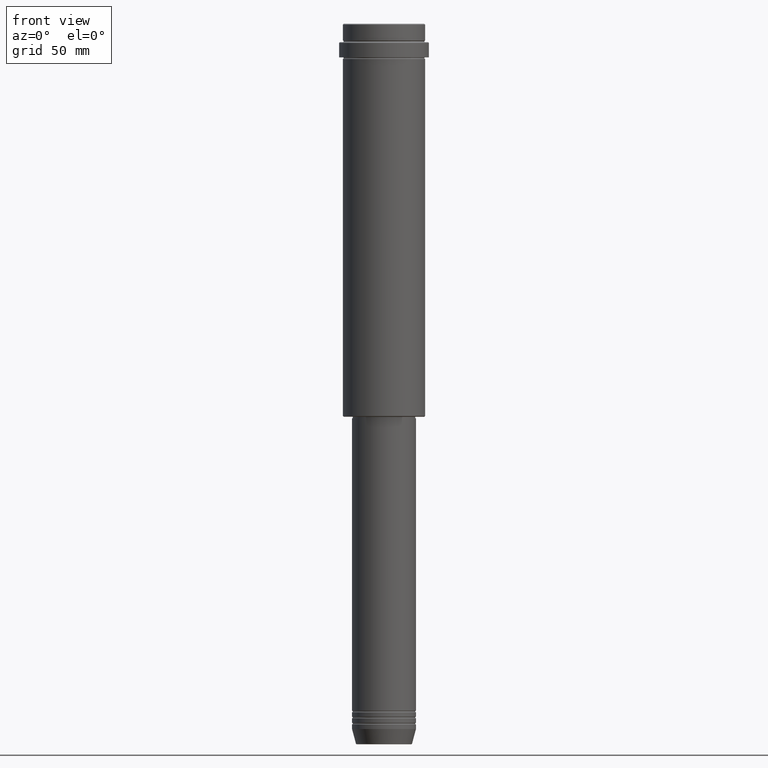
[diagram: clean part render]
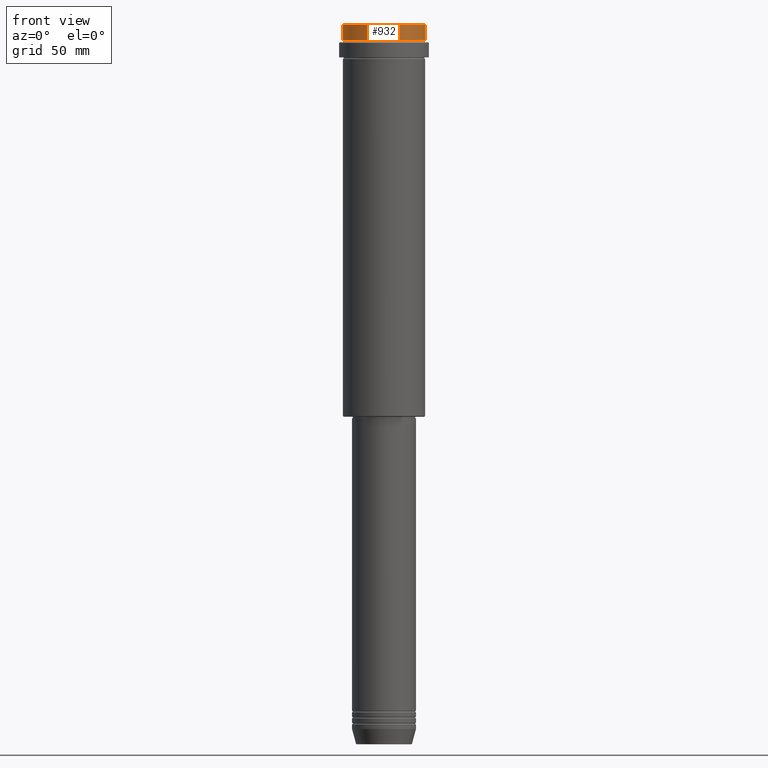
[diagram: same view with one face highlighted and labeled with its STEP entity id]
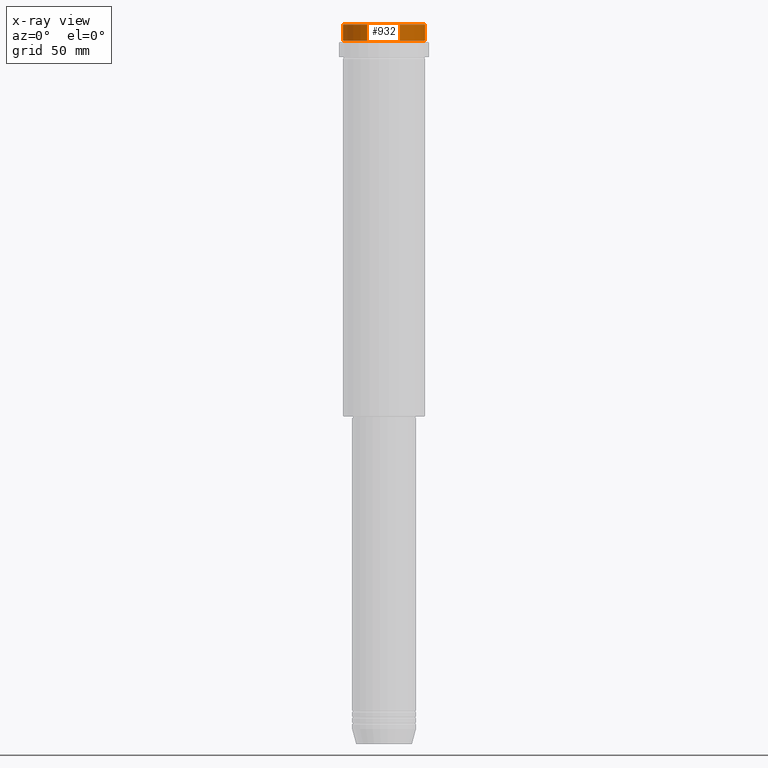
[diagram: x-ray of the same camera — body ghosted, the highlighted face saturated]
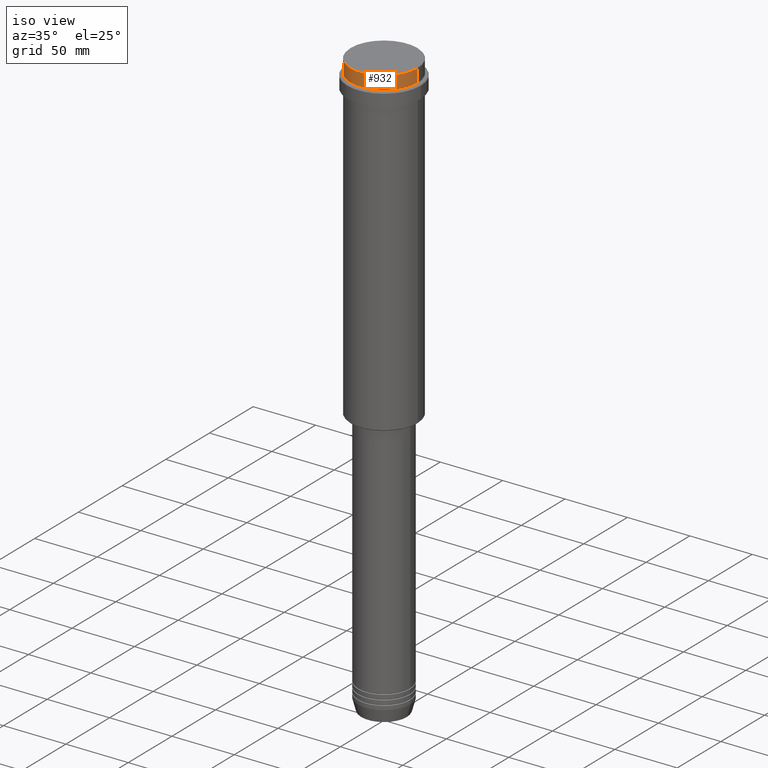
[diagram: same view with one face highlighted and labeled with its STEP entity id]
A machine part, front view. The second image highlights one B-rep face of the part: STEP entity #932.
The next image is the same camera in x-ray: the body ghosted, the highlighted face saturated — about 0% of this face is hidden behind the body in this view.
A second angle (iso view) of the same face is appended — the face is thin or edge-on in the first view.
In plain terms, the highlighted cylindrical surface (partial cylindrical patch) has radius 27 mm, axis along (-0, -0, 1).
Its self-contained STEP definition (entity closure, byte-faithful):
#41 = CARTESIAN_POINT ( 'NONE',  ( -27.00000000000000355, 3.306546357697854128E-15, 0.000000000000000000 ) ) ;
#65 = CYLINDRICAL_SURFACE ( 'NONE', #476, 27.00000000000000355 ) ;
#109 = ORIENTED_EDGE ( 'NONE', *, *, #1098, .T. ) ;
#147 = DIRECTION ( 'NONE',  ( -0.000000000000000000, -0.000000000000000000, 1.000000000000000000 ) ) ;
#159 = VERTEX_POINT ( 'NONE', #425 ) ;
#161 = VERTEX_POINT ( 'NONE', #328 ) ;
#206 = DIRECTION ( 'NONE',  ( 1.000000000000000000, 0.000000000000000000, 0.000000000000000000 ) ) ;
#209 = ORIENTED_EDGE ( 'NONE', *, *, #766, .F. ) ;
#252 = CARTESIAN_POINT ( 'NONE',  ( -27.00000000000000355, 3.306546357697854128E-15, -0.4999999999999241163 ) ) ;
#276 = DIRECTION ( 'NONE',  ( 1.000000000000000000, 0.000000000000000000, 0.000000000000000000 ) ) ;
#293 = VECTOR ( 'NONE', #147, 1000.000000000000000 ) ;
#300 = CARTESIAN_POINT ( 'NONE',  ( 27.00000000000000355, 0.000000000000000000, 0.000000000000000000 ) ) ;
#317 = DIRECTION ( 'NONE',  ( 0.000000000000000000, 0.000000000000000000, -1.000000000000000000 ) ) ;
#328 = CARTESIAN_POINT ( 'NONE',  ( 27.00000000000000355, 0.000000000000000000, -0.4999999999999241163 ) ) ;
#397 = VERTEX_POINT ( 'NONE', #252 ) ;
#418 = CARTESIAN_POINT ( 'NONE',  ( 0.000000000000000000, 0.000000000000000000, -0.4999999999999241163 ) ) ;
#425 = CARTESIAN_POINT ( 'NONE',  ( -27.00000000000000355, 3.306546357697854128E-15, -11.00000000000000178 ) ) ;
#476 = AXIS2_PLACEMENT_3D ( 'NONE', #1020, #517, #1045 ) ;
#517 = DIRECTION ( 'NONE',  ( -0.000000000000000000, -0.000000000000000000, 1.000000000000000000 ) ) ;
#526 = EDGE_CURVE ( 'NONE', #159, #1352, #1382, .T. ) ;
#536 = EDGE_CURVE ( 'NONE', #1352, #161, #1167, .T. ) ;
#725 = AXIS2_PLACEMENT_3D ( 'NONE', #841, #1272, #276 ) ;
#766 = EDGE_CURVE ( 'NONE', #159, #397, #785, .T. ) ;
#785 = LINE ( 'NONE', #41, #293 ) ;
#828 = FACE_OUTER_BOUND ( 'NONE', #1153, .T. ) ;
#841 = CARTESIAN_POINT ( 'NONE',  ( 0.000000000000000000, 0.000000000000000000, -11.00000000000000178 ) ) ;
#877 = CIRCLE ( 'NONE', #1342, 27.00000000000000355 ) ;
#931 = ORIENTED_EDGE ( 'NONE', *, *, #526, .T. ) ;
#932 = ADVANCED_FACE ( 'NONE', ( #828 ), #65, .T. ) ;
#965 = CARTESIAN_POINT ( 'NONE',  ( 27.00000000000000355, 0.000000000000000000, -11.00000000000000178 ) ) ;
#966 = VECTOR ( 'NONE', #1365, 1000.000000000000000 ) ;
#1018 = ORIENTED_EDGE ( 'NONE', *, *, #536, .T. ) ;
#1020 = CARTESIAN_POINT ( 'NONE',  ( 0.000000000000000000, 0.000000000000000000, 0.000000000000000000 ) ) ;
#1045 = DIRECTION ( 'NONE',  ( 1.000000000000000000, 0.000000000000000000, 0.000000000000000000 ) ) ;
#1098 = EDGE_CURVE ( 'NONE', #161, #397, #877, .T. ) ;
#1153 = EDGE_LOOP ( 'NONE', ( #209, #931, #1018, #109 ) ) ;
#1167 = LINE ( 'NONE', #300, #966 ) ;
#1272 = DIRECTION ( 'NONE',  ( -0.000000000000000000, -0.000000000000000000, 1.000000000000000000 ) ) ;
#1342 = AXIS2_PLACEMENT_3D ( 'NONE', #418, #317, #206 ) ;
#1352 = VERTEX_POINT ( 'NONE', #965 ) ;
#1365 = DIRECTION ( 'NONE',  ( -0.000000000000000000, -0.000000000000000000, 1.000000000000000000 ) ) ;
#1382 = CIRCLE ( 'NONE', #725, 27.00000000000000355 ) ;